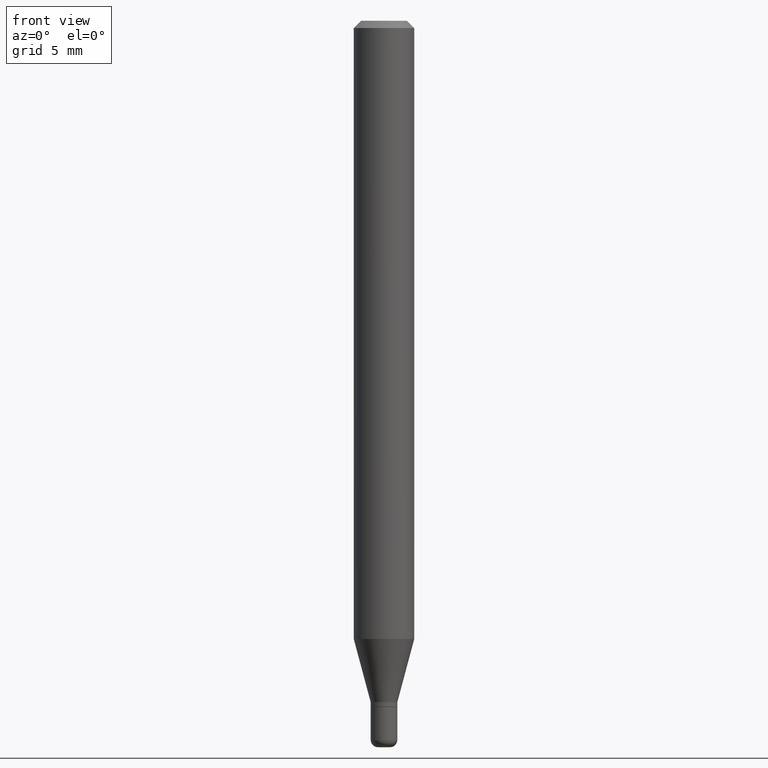
[diagram: clean part render]
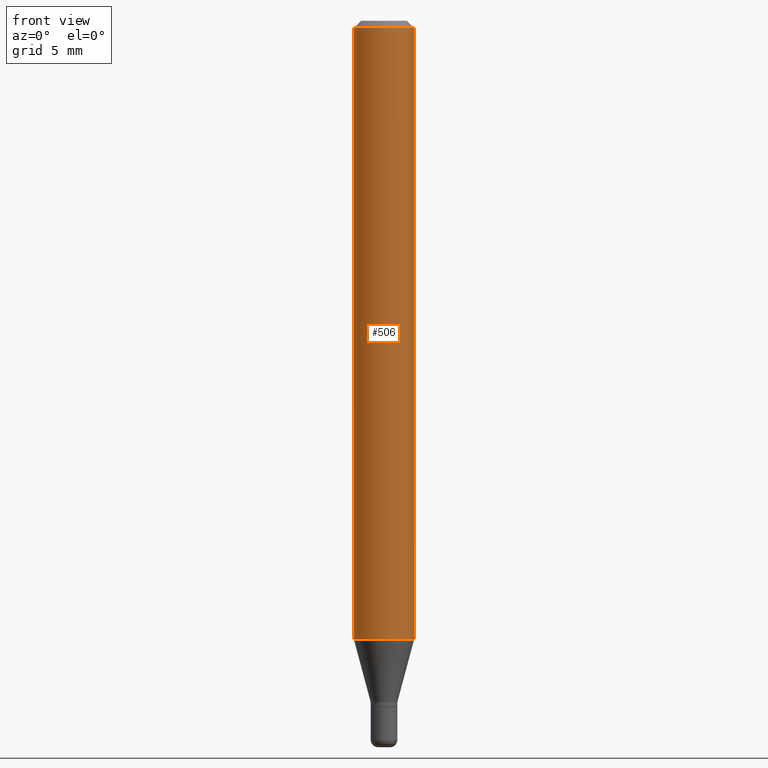
[diagram: same view with one face highlighted and labeled with its STEP entity id]
A machine part, front view. The second image highlights one B-rep face of the part: STEP entity #506.
In plain terms, the highlighted cylindrical surface (edge-blend (fillet) strip) has radius 1.5875 mm, axis along (-0, 0, 1).
Its self-contained STEP definition (entity closure, byte-faithful):
#13 = CARTESIAN_POINT ( 'NONE',  ( 0.06250000000000000000, -4.888073874380378612E-16, -0.01499999999999970281 ) ) ;
#18 = EDGE_CURVE ( 'NONE', #322, #280, #421, .T. ) ;
#30 = CARTESIAN_POINT ( 'NONE',  ( 0.06250000000000000000, -4.364351673553916694E-16, 3.047610484872459871E-30 ) ) ;
#38 = CARTESIAN_POINT ( 'NONE',  ( 3.668203209277632395E-31, -5.237222008264614861E-17, -0.01499999999999970281 ) ) ;
#47 = LINE ( 'NONE', #132, #490 ) ;
#51 = CYLINDRICAL_SURFACE ( 'NONE', #82, 0.06250000000000000000 ) ;
#55 = VERTEX_POINT ( 'NONE', #13 ) ;
#77 = LINE ( 'NONE', #30, #337 ) ;
#82 = AXIS2_PLACEMENT_3D ( 'NONE', #348, #359, #428 ) ;
#94 = CARTESIAN_POINT ( 'NONE',  ( 3.121343126147216904E-29, -4.456450742493864567E-15, -1.276378221735089635 ) ) ;
#112 = ORIENTED_EDGE ( 'NONE', *, *, #482, .T. ) ;
#128 = FACE_OUTER_BOUND ( 'NONE', #358, .T. ) ;
#132 = CARTESIAN_POINT ( 'NONE',  ( -0.06250000000000000000, 4.440892098500626162E-16, -3.074334431409316114E-30 ) ) ;
#139 = ORIENTED_EDGE ( 'NONE', *, *, #467, .F. ) ;
#149 = DIRECTION ( 'NONE',  ( 1.000000000000000000, -6.982962677686262766E-15, 0.000000000000000000 ) ) ;
#188 = DIRECTION ( 'NONE',  ( -2.445468806185136877E-29, 3.491481338843145188E-15, 1.000000000000000000 ) ) ;
#191 = AXIS2_PLACEMENT_3D ( 'NONE', #94, #284, #149 ) ;
#220 = VERTEX_POINT ( 'NONE', #512 ) ;
#258 = ORIENTED_EDGE ( 'NONE', *, *, #18, .T. ) ;
#262 = DIRECTION ( 'NONE',  ( -2.445468806185136597E-29, 3.491481338843145583E-15, 1.000000000000000000 ) ) ;
#268 = CARTESIAN_POINT ( 'NONE',  ( 0.06250000000000000000, -4.892885909849255447E-15, -1.276378221735089635 ) ) ;
#272 = CARTESIAN_POINT ( 'NONE',  ( -0.06250000000000000000, -4.012361532643800373E-15, -1.276378221735089635 ) ) ;
#280 = VERTEX_POINT ( 'NONE', #268 ) ;
#284 = DIRECTION ( 'NONE',  ( -2.445468806185136597E-29, 3.491481338843145583E-15, 1.000000000000000000 ) ) ;
#312 = EDGE_CURVE ( 'NONE', #322, #220, #47, .T. ) ;
#322 = VERTEX_POINT ( 'NONE', #272 ) ;
#337 = VECTOR ( 'NONE', #188, 39.37007874015748143 ) ;
#348 = CARTESIAN_POINT ( 'NONE',  ( 0.000000000000000000, 0.000000000000000000, 0.000000000000000000 ) ) ;
#358 = EDGE_LOOP ( 'NONE', ( #494, #258, #112, #139 ) ) ;
#359 = DIRECTION ( 'NONE',  ( -2.445468806185136597E-29, 3.491481338843145583E-15, 1.000000000000000000 ) ) ;
#391 = AXIS2_PLACEMENT_3D ( 'NONE', #38, #262, #417 ) ;
#417 = DIRECTION ( 'NONE',  ( 1.000000000000000000, -6.982962677686266711E-15, 0.000000000000000000 ) ) ;
#421 = CIRCLE ( 'NONE', #191, 0.06250000000000000000 ) ;
#428 = DIRECTION ( 'NONE',  ( 1.000000000000000000, -6.982962677686266711E-15, 4.876176775795935793E-29 ) ) ;
#435 = DIRECTION ( 'NONE',  ( -2.445468806185136877E-29, 3.491481338843145188E-15, 1.000000000000000000 ) ) ;
#467 = EDGE_CURVE ( 'NONE', #220, #55, #500, .T. ) ;
#482 = EDGE_CURVE ( 'NONE', #280, #55, #77, .T. ) ;
#490 = VECTOR ( 'NONE', #435, 39.37007874015748143 ) ;
#494 = ORIENTED_EDGE ( 'NONE', *, *, #312, .F. ) ;
#500 = CIRCLE ( 'NONE', #391, 0.06250000000000000000 ) ;
#506 = ADVANCED_FACE ( 'NONE', ( #128 ), #51, .T. ) ;
#512 = CARTESIAN_POINT ( 'NONE',  ( -0.06250000000000000000, -1.810322271438192615E-15, -0.01499999999999970281 ) ) ;